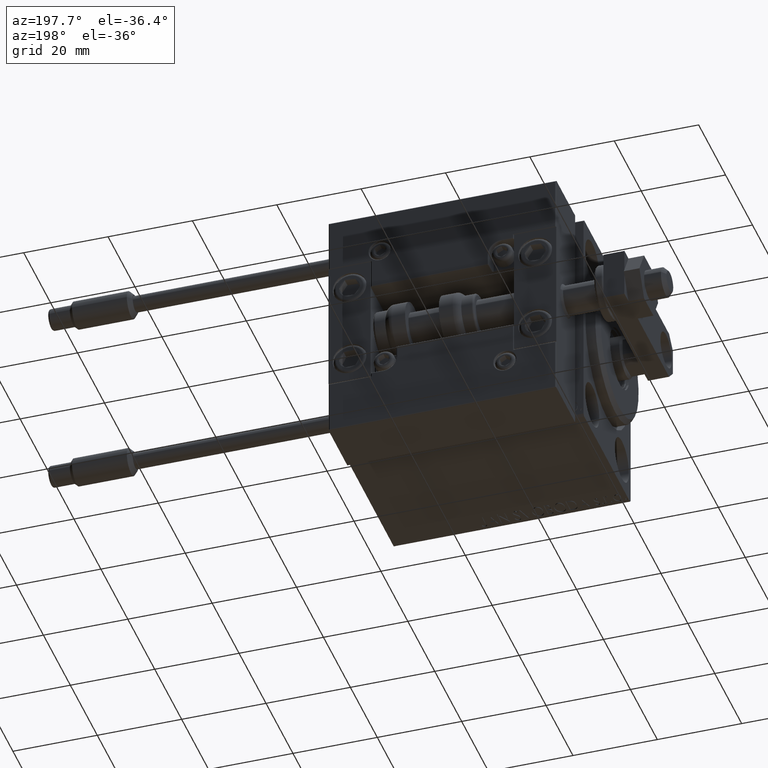
[diagram: clean part render]
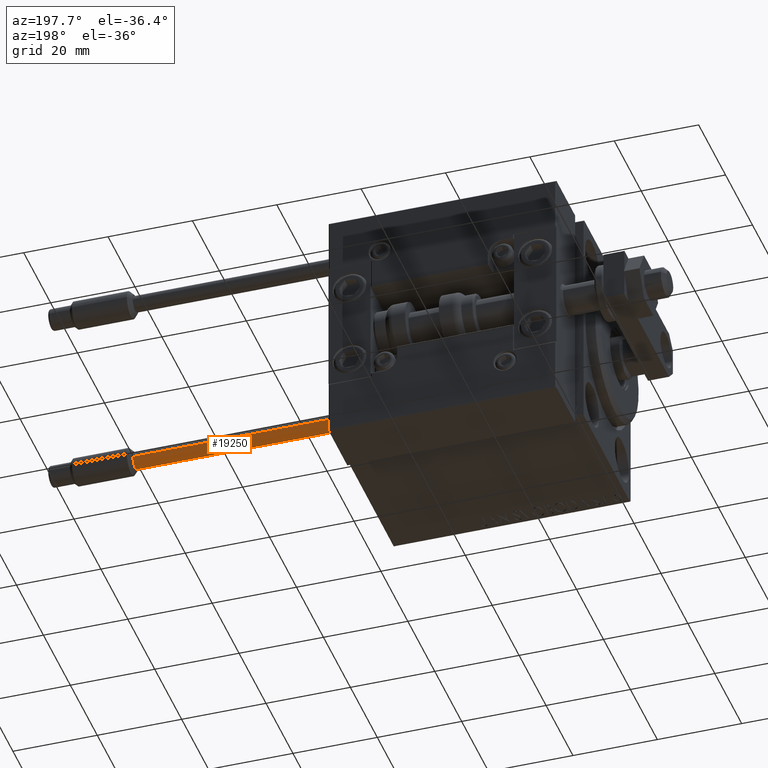
[diagram: same view with one face highlighted and labeled with its STEP entity id]
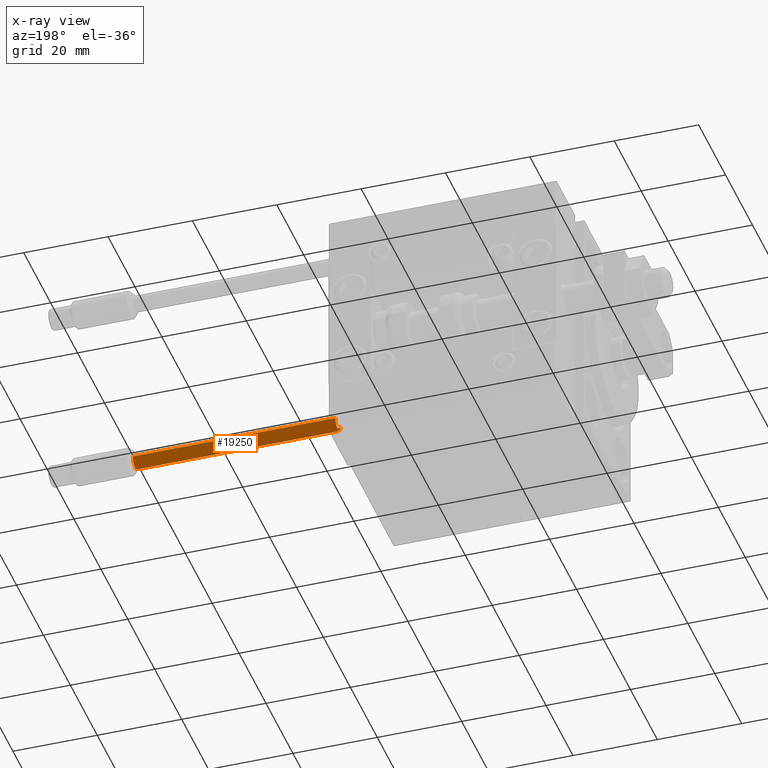
[diagram: x-ray of the same camera — body ghosted, the highlighted face saturated]
A machine part, auxiliary view. The second image highlights one B-rep face of the part: STEP entity #19250.
The next image is the same camera in x-ray: the body ghosted, the highlighted face saturated — about 0% of this face is hidden behind the body in this view.
In plain terms, the highlighted cylindrical surface (edge-blend (fillet) strip) has radius 1.9 mm, axis along (-1, 0, 0).
Its self-contained STEP definition (entity closure, byte-faithful):
#4237 = DIRECTION ( 'NONE',  ( 1.000000000000000000, 0.000000000000000000, 0.000000000000000000 ) ) ;
#4837 = EDGE_CURVE ( 'NONE', #50205, #29371, #40328, .T. ) ;
#5771 = CIRCLE ( 'NONE', #15540, 1.899999999999999467 ) ;
#6520 = CARTESIAN_POINT ( 'NONE',  ( 1.899999999999999467, 2.326828918379970872E-16, 48.00000000000000000 ) ) ;
#7288 = DIRECTION ( 'NONE',  ( 0.000000000000000000, 0.000000000000000000, 1.000000000000000000 ) ) ;
#8217 = VECTOR ( 'NONE', #37937, 1000.000000000000000 ) ;
#8581 = EDGE_CURVE ( 'NONE', #21519, #29371, #5771, .T. ) ;
#8944 = DIRECTION ( 'NONE',  ( 1.000000000000000000, 0.000000000000000000, 0.000000000000000000 ) ) ;
#10506 = VERTEX_POINT ( 'NONE', #36821 ) ;
#15222 = CIRCLE ( 'NONE', #33181, 1.899999999999999467 ) ;
#15540 = AXIS2_PLACEMENT_3D ( 'NONE', #47775, #32193, #8944 ) ;
#15787 = ORIENTED_EDGE ( 'NONE', *, *, #8581, .T. ) ;
#16474 = LINE ( 'NONE', #24147, #36206 ) ;
#17564 = AXIS2_PLACEMENT_3D ( 'NONE', #35371, #31273, #39189 ) ;
#19250 = ADVANCED_FACE ( 'NONE', ( #46859 ), #43012, .T. ) ;
#21519 = VERTEX_POINT ( 'NONE', #43497 ) ;
#24147 = CARTESIAN_POINT ( 'NONE',  ( -1.899999999999999467, 0.000000000000000000, 48.00000000000000000 ) ) ;
#24324 = EDGE_CURVE ( 'NONE', #10506, #50205, #15222, .T. ) ;
#26713 = CARTESIAN_POINT ( 'NONE',  ( 0.000000000000000000, 0.000000000000000000, 48.00000000000000000 ) ) ;
#29371 = VERTEX_POINT ( 'NONE', #44960 ) ;
#31273 = DIRECTION ( 'NONE',  ( -0.000000000000000000, -0.000000000000000000, -1.000000000000000000 ) ) ;
#32193 = DIRECTION ( 'NONE',  ( 0.000000000000000000, 0.000000000000000000, 1.000000000000000000 ) ) ;
#33181 = AXIS2_PLACEMENT_3D ( 'NONE', #26713, #7288, #4237 ) ;
#35371 = CARTESIAN_POINT ( 'NONE',  ( 0.000000000000000000, 0.000000000000000000, 48.00000000000000000 ) ) ;
#36206 = VECTOR ( 'NONE', #44302, 1000.000000000000000 ) ;
#36821 = CARTESIAN_POINT ( 'NONE',  ( -1.899999999999999467, 0.000000000000000000, 48.00000000000000000 ) ) ;
#37937 = DIRECTION ( 'NONE',  ( -0.000000000000000000, -0.000000000000000000, -1.000000000000000000 ) ) ;
#39189 = DIRECTION ( 'NONE',  ( -1.000000000000000000, 0.000000000000000000, 0.000000000000000000 ) ) ;
#40328 = LINE ( 'NONE', #6520, #8217 ) ;
#40665 = ORIENTED_EDGE ( 'NONE', *, *, #4837, .F. ) ;
#43012 = CYLINDRICAL_SURFACE ( 'NONE', #17564, 1.899999999999999467 ) ;
#43497 = CARTESIAN_POINT ( 'NONE',  ( -1.899999999999999467, 0.000000000000000000, 0.000000000000000000 ) ) ;
#44302 = DIRECTION ( 'NONE',  ( -0.000000000000000000, -0.000000000000000000, -1.000000000000000000 ) ) ;
#44863 = EDGE_CURVE ( 'NONE', #10506, #21519, #16474, .T. ) ;
#44960 = CARTESIAN_POINT ( 'NONE',  ( 1.899999999999999467, 2.326828918379970872E-16, 0.000000000000000000 ) ) ;
#46859 = FACE_OUTER_BOUND ( 'NONE', #49896, .T. ) ;
#47775 = CARTESIAN_POINT ( 'NONE',  ( 0.000000000000000000, 0.000000000000000000, 0.000000000000000000 ) ) ;
#49772 = ORIENTED_EDGE ( 'NONE', *, *, #24324, .F. ) ;
#49896 = EDGE_LOOP ( 'NONE', ( #40665, #49772, #50134, #15787 ) ) ;
#50008 = CARTESIAN_POINT ( 'NONE',  ( 1.899999999999999467, 2.326828918379970872E-16, 48.00000000000000000 ) ) ;
#50134 = ORIENTED_EDGE ( 'NONE', *, *, #44863, .T. ) ;
#50205 = VERTEX_POINT ( 'NONE', #50008 ) ;